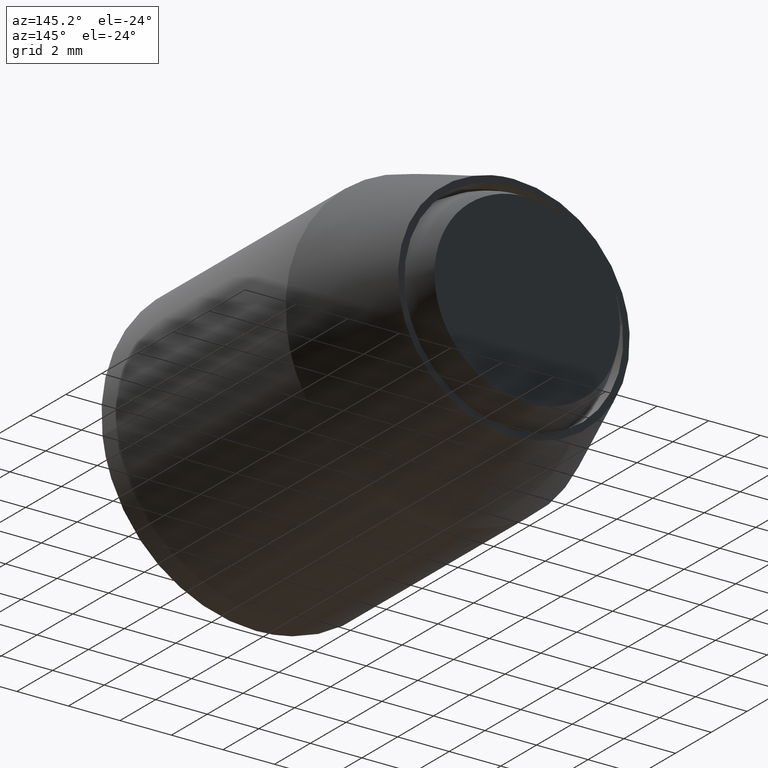
[diagram: clean part render]
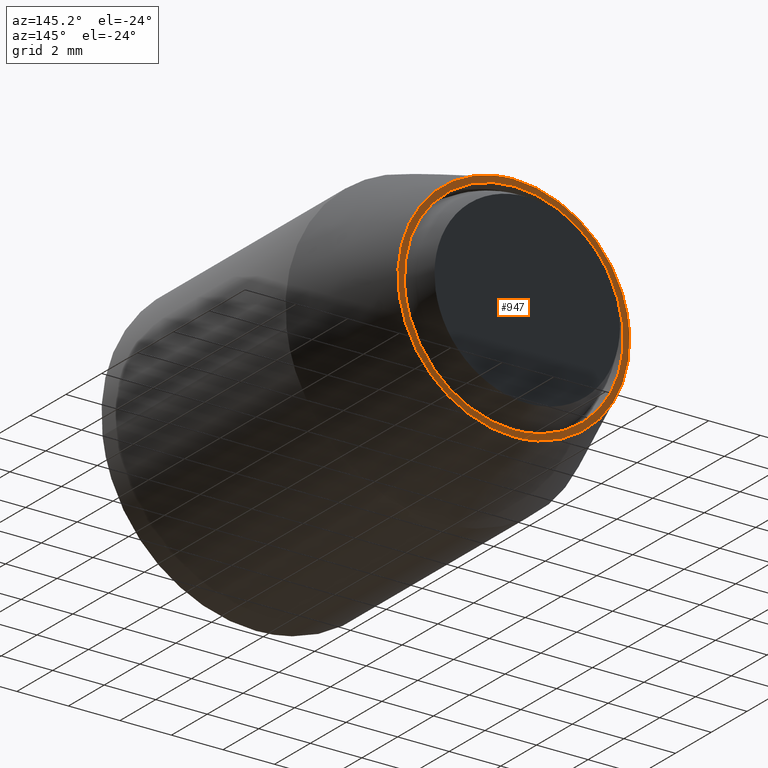
[diagram: same view with one face highlighted and labeled with its STEP entity id]
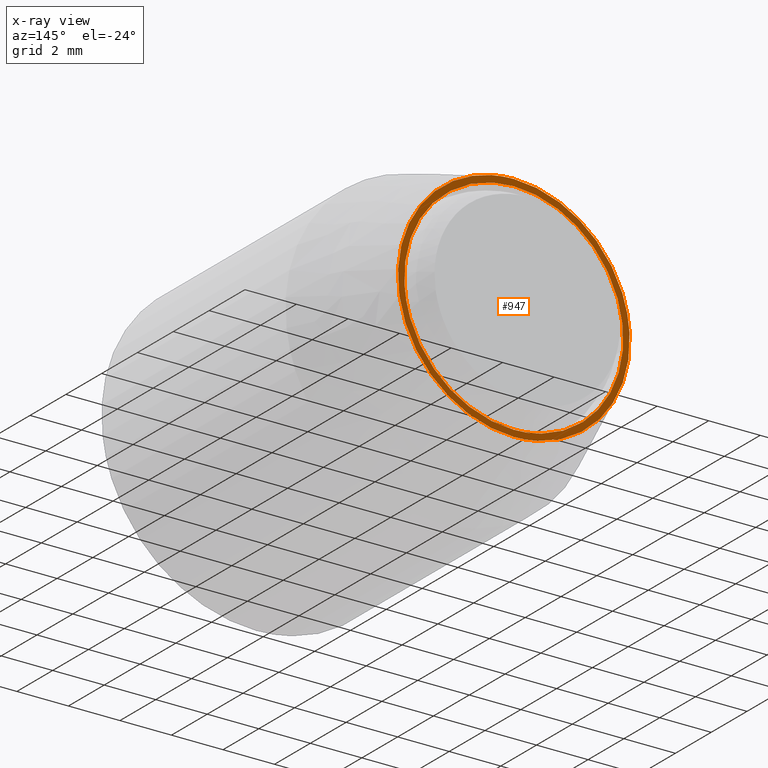
[diagram: x-ray of the same camera — body ghosted, the highlighted face saturated]
A machine part, auxiliary view. The second image highlights one B-rep face of the part: STEP entity #947.
The next image is the same camera in x-ray: the body ghosted, the highlighted face saturated — about 0% of this face is hidden behind the body in this view.
In plain terms, the highlighted face is a freeform B-spline surface patch.
Its self-contained STEP definition (entity closure, byte-faithful):
#100=CARTESIAN_POINT('',(4.242073218312985,-1.526557E-016,-0.259450978883026));
#101=VERTEX_POINT('',#100);
#107=CARTESIAN_POINT('',(0.0,0.0,-4.250000000000000));
#108=VERTEX_POINT('',#107);
#109=CARTESIAN_POINT('',(0.0,0.0,-4.250000000000000));
#110=CARTESIAN_POINT('',(3.998005802096377,0.0,-4.250000000000001));
#111=CARTESIAN_POINT('',(4.242073218312986,-1.526557E-016,-0.259450978883027));
#119=(BOUNDED_CURVE()B_SPLINE_CURVE(2,(#109,#110,#111),.UNSPECIFIED.,.F.,.U.)B_SPLINE_CURVE_WITH_KNOTS((3,3),(0.500000000000000,0.739333178395247),.UNSPECIFIED.)CURVE()GEOMETRIC_REPRESENTATION_ITEM()RATIONAL_B_SPLINE_CURVE((1.0,0.719603740043847,0.976072504931263))REPRESENTATION_ITEM(''));
#120=EDGE_CURVE('',#108,#101,#119,.T.);
#122=CARTESIAN_POINT('',(-4.220290974913886,-1.561686E-016,0.501641392872752));
#123=VERTEX_POINT('',#122);
#124=CARTESIAN_POINT('',(-4.220290974913886,-1.561686E-016,0.501641392872752));
#125=CARTESIAN_POINT('',(-4.250000000000000,0.0,0.251700434615987));
#126=CARTESIAN_POINT('',(-4.250000000000000,0.0,0.0));
#127=CARTESIAN_POINT('',(-4.249999999999999,0.0,-4.249999999999999));
#128=CARTESIAN_POINT('',(0.0,0.0,-4.250000000000000));
#136=(BOUNDED_CURVE()B_SPLINE_CURVE(2,(#124,#125,#126,#127,#128),.UNSPECIFIED.,.F.,.U.)B_SPLINE_CURVE_WITH_KNOTS((3,2,3),(0.229562637878761,0.250000000000000,0.500000000000000),.UNSPECIFIED.)CURVE()GEOMETRIC_REPRESENTATION_ITEM()RATIONAL_B_SPLINE_CURVE((0.956027076346574,0.976056140897017,1.0,0.707106781186548,1.0))REPRESENTATION_ITEM(''));
#137=EDGE_CURVE('',#123,#108,#136,.T.);
#181=CARTESIAN_POINT('',(0.0,0.0,4.250000000000000));
#182=VERTEX_POINT('',#181);
#183=CARTESIAN_POINT('',(0.0,0.0,4.250000000000000));
#184=CARTESIAN_POINT('',(-3.774745432240564,0.0,4.250000000000001));
#185=CARTESIAN_POINT('',(-4.220290974913886,-1.561686E-016,0.501641392872752));
#193=(BOUNDED_CURVE()B_SPLINE_CURVE(2,(#183,#184,#185),.UNSPECIFIED.,.F.,.U.)B_SPLINE_CURVE_WITH_KNOTS((3,3),(0.0,0.229562637878761),.UNSPECIFIED.)CURVE()GEOMETRIC_REPRESENTATION_ITEM()RATIONAL_B_SPLINE_CURVE((1.0,0.731050640289531,0.956027076346574))REPRESENTATION_ITEM(''));
#194=EDGE_CURVE('',#182,#123,#193,.T.);
#196=CARTESIAN_POINT('',(4.242073218312986,-1.526557E-016,-0.259450978883027));
#197=CARTESIAN_POINT('',(4.250000000000000,0.0,-0.129846579499034));
#198=CARTESIAN_POINT('',(4.250000000000000,0.0,0.0));
#199=CARTESIAN_POINT('',(4.249999999999999,0.0,4.249999999999999));
#200=CARTESIAN_POINT('',(0.0,0.0,4.250000000000000));
#208=(BOUNDED_CURVE()B_SPLINE_CURVE(2,(#196,#197,#198,#199,#200),.UNSPECIFIED.,.F.,.U.)B_SPLINE_CURVE_WITH_KNOTS((3,2,3),(0.739333178395247,0.750000000000000,1.0),.UNSPECIFIED.)CURVE()GEOMETRIC_REPRESENTATION_ITEM()RATIONAL_B_SPLINE_CURVE((0.976072504931263,0.987503041142700,1.0,0.707106781186548,1.0))REPRESENTATION_ITEM(''));
#209=EDGE_CURVE('',#101,#182,#208,.T.);
#481=CARTESIAN_POINT('',(1.582279453548931,0.000001884171921,4.212645909500716));
#482=VERTEX_POINT('',#481);
#488=CARTESIAN_POINT('',(0.0,0.0,4.499999999999999));
#489=VERTEX_POINT('',#488);
#490=CARTESIAN_POINT('',(1.582279453548931,0.000001884171921,4.212645909500716));
#491=CARTESIAN_POINT('',(0.817232460141086,0.000000942085960,4.499999679004433));
#492=CARTESIAN_POINT('',(0.0,0.0,4.499999999999999));
#500=(BOUNDED_CURVE()B_SPLINE_CURVE(2,(#490,#491,#492),.UNSPECIFIED.,.F.,.U.)B_SPLINE_CURVE_WITH_KNOTS((3,3),(0.440284215520028,0.500000000000000),.UNSPECIFIED.)CURVE()GEOMETRIC_REPRESENTATION_ITEM()RATIONAL_B_SPLINE_CURVE((0.893499609241441,0.930038606678762,1.0))REPRESENTATION_ITEM(''));
#501=EDGE_CURVE('',#482,#489,#500,.T.);
#503=CARTESIAN_POINT('',(-4.491606592898449,-1.484542E-012,0.274718427914976));
#504=VERTEX_POINT('',#503);
#505=CARTESIAN_POINT('',(0.0,0.0,4.499999999999999));
#506=CARTESIAN_POINT('',(-4.233177301060372,0.0,4.499999999999999));
#507=CARTESIAN_POINT('',(-4.491606592898449,-1.484542E-012,0.274718427914976));
#515=(BOUNDED_CURVE()B_SPLINE_CURVE(2,(#505,#506,#507),.UNSPECIFIED.,.F.,.U.)B_SPLINE_CURVE_WITH_KNOTS((3,3),(0.500000000000000,0.739332962241348),.UNSPECIFIED.)CURVE()GEOMETRIC_REPRESENTATION_ITEM()RATIONAL_B_SPLINE_CURVE((1.0,0.719603993283893,0.976072041671871))REPRESENTATION_ITEM(''));
#516=EDGE_CURVE('',#489,#504,#515,.T.);
#611=CARTESIAN_POINT('',(0.0,0.0,-4.500000000000001));
#612=VERTEX_POINT('',#611);
#613=CARTESIAN_POINT('',(-4.491606592898449,-1.484542E-012,0.274718427914976));
#614=CARTESIAN_POINT('',(-4.500000000000000,0.0,0.137487434851759));
#615=CARTESIAN_POINT('',(-4.500000000000000,0.0,-1.025608E-015));
#616=CARTESIAN_POINT('',(-4.500000000000000,0.0,-4.500000000000000));
#617=CARTESIAN_POINT('',(0.0,0.0,-4.500000000000001));
#625=(BOUNDED_CURVE()B_SPLINE_CURVE(2,(#613,#614,#615,#616,#617),.UNSPECIFIED.,.F.,.U.)B_SPLINE_CURVE_WITH_KNOTS((3,2,3),(0.739332962241347,0.750000000000000,1.0),.UNSPECIFIED.)CURVE()GEOMETRIC_REPRESENTATION_ITEM()RATIONAL_B_SPLINE_CURVE((0.976072041671870,0.987502787902654,1.0,0.707106781186547,1.0))REPRESENTATION_ITEM(''));
#626=EDGE_CURVE('',#504,#612,#625,.T.);
#628=CARTESIAN_POINT('',(0.0,0.0,-4.500000000000001));
#629=CARTESIAN_POINT('',(4.499999978104220,0.000000171089631,-4.500000058295120));
#630=CARTESIAN_POINT('',(4.499999857537549,0.000001113175592,-0.000000379290687));
#631=CARTESIAN_POINT('',(4.499999774031891,0.000001765673565,3.116743519554750));
#632=CARTESIAN_POINT('',(1.582279453548931,0.000001884171921,4.212645909500716));
#640=(BOUNDED_CURVE()B_SPLINE_CURVE(2,(#628,#629,#630,#631,#632),.UNSPECIFIED.,.F.,.U.)B_SPLINE_CURVE_WITH_KNOTS((3,2,3),(0.0,0.250000000000000,0.440284215520028),.UNSPECIFIED.)CURVE()GEOMETRIC_REPRESENTATION_ITEM()RATIONAL_B_SPLINE_CURVE((1.0,0.707106781186547,1.0,0.777068174507786,0.893499609241441))REPRESENTATION_ITEM(''));
#641=EDGE_CURVE('',#612,#482,#640,.T.);
#930=CARTESIAN_POINT('',(-4.949440517086831,0.0,-4.949549982556254));
#931=CARTESIAN_POINT('',(-4.949440517086831,0.0,4.949550223955064));
#932=CARTESIAN_POINT('',(4.949464093704071,0.0,-4.949549982556254));
#933=CARTESIAN_POINT('',(4.949464093704071,0.0,4.949550223955064));
#934=B_SPLINE_SURFACE_WITH_KNOTS('',1,1,((#930,#932),(#931,#933)),.UNSPECIFIED.,.F.,.F.,.U.,(2,2),(2,2),(0.0,9.899100206511317),(0.0,9.898904610790902),.UNSPECIFIED.);
#935=ORIENTED_EDGE('',*,*,#626,.F.);
#936=ORIENTED_EDGE('',*,*,#516,.F.);
#937=ORIENTED_EDGE('',*,*,#501,.F.);
#938=ORIENTED_EDGE('',*,*,#641,.F.);
#939=EDGE_LOOP('',(#935,#936,#937,#938));
#940=FACE_OUTER_BOUND('',#939,.T.);
#941=ORIENTED_EDGE('',*,*,#120,.T.);
#942=ORIENTED_EDGE('',*,*,#209,.T.);
#943=ORIENTED_EDGE('',*,*,#194,.T.);
#944=ORIENTED_EDGE('',*,*,#137,.T.);
#945=EDGE_LOOP('',(#941,#942,#943,#944));
#946=FACE_BOUND('',#945,.T.);
#947=ADVANCED_FACE('',(#940,#946),#934,.T.);